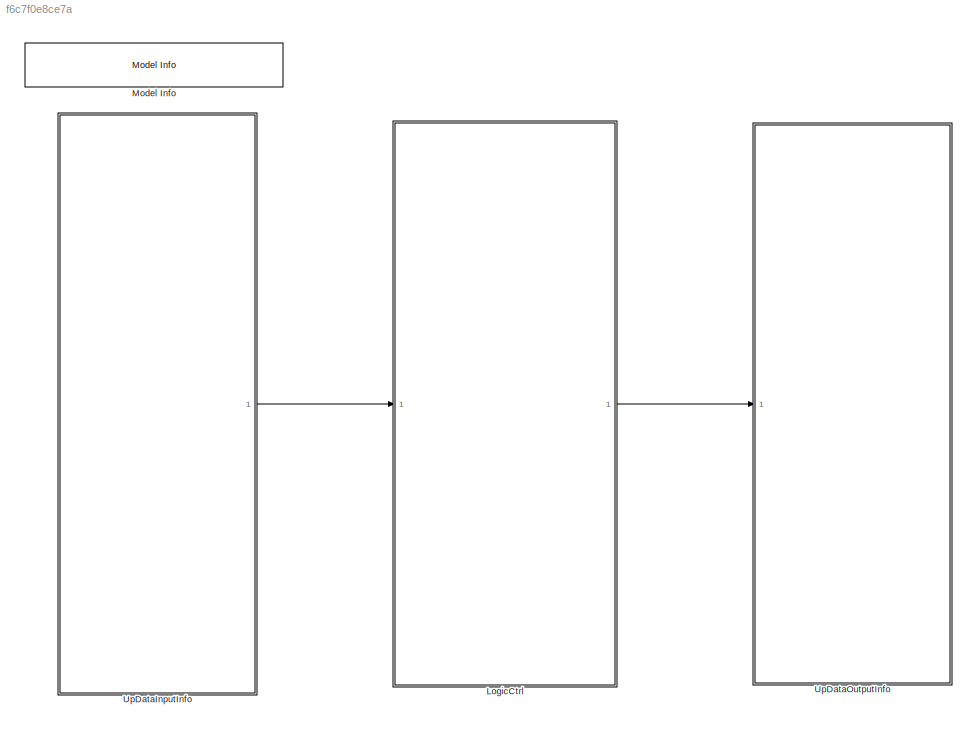
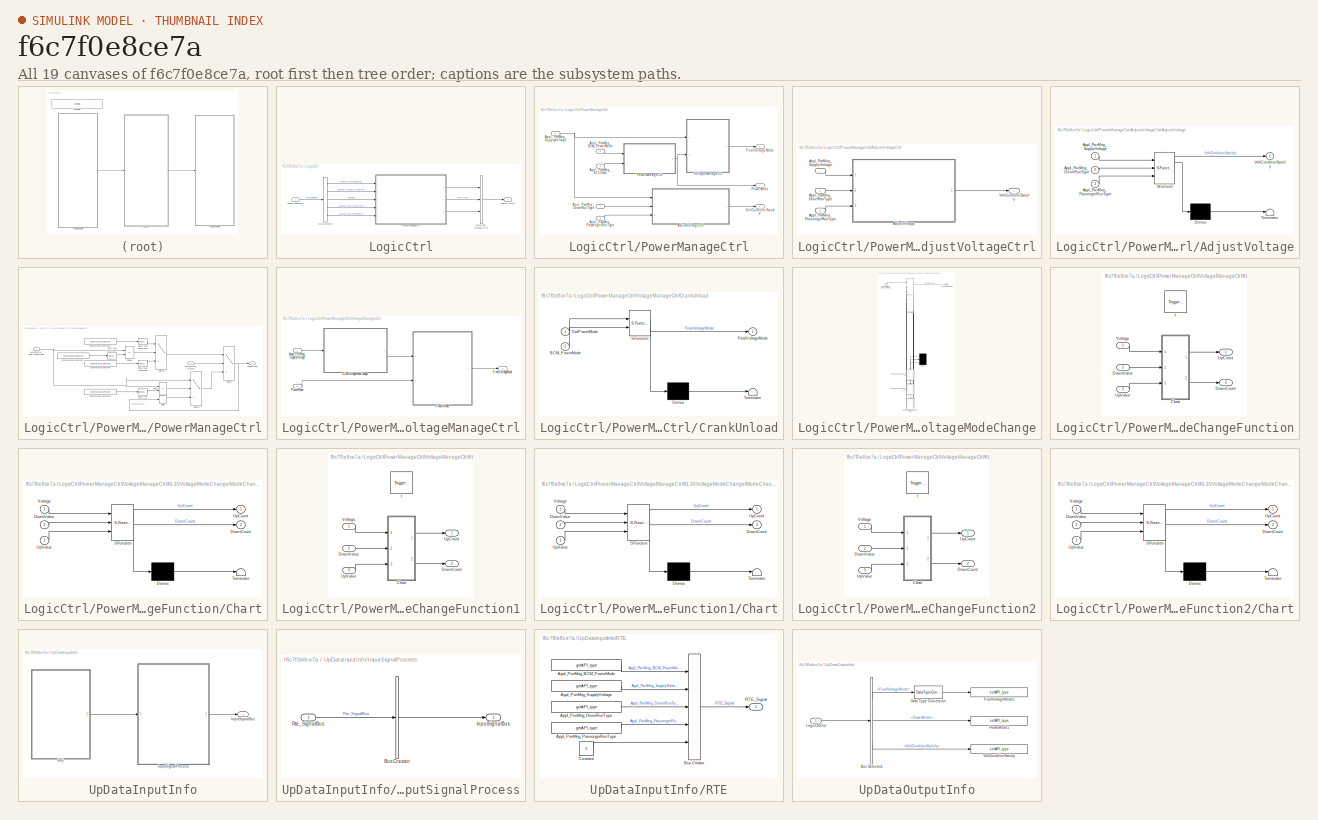
[diagram: thumbnail index - all 19 canvases of the model, root first then tree order]
MODEL slx_f6c7f0e8ce7a
KIND model
BLOCK [SubSystem] LogicCtrl
  Ports = [1, 1]
  Priority = 2
  RTWFcnNameOpts = Use subsystem name
  RTWSystemCode = Nonreusable function
  RequestExecContextInheritance = off
  TreatAsAtomicUnit = on
BLOCK [BusSelector] LogicCtrl/Bus Selector
  OutputAsBus = off
  OutputSignals = Rte_SignalBus.Appl_PwrMng_SupplyVoltage,Rte_SignalBus.Appl_PwrMng_BCM_PowerMode,Rte_SignalBus.signal5,Rte_SignalBus.Appl_PwrMng_DriverRunType,Rte_SignalBus.Appl_PwrMng_PassengerRunType
  Ports = [1, 5]
BLOCK [Inport] LogicCtrl/InputSignalBus
  IconDisplay = Port number
BLOCK [Outport] LogicCtrl/LogicCtrlOut
  IconDisplay = Port number
BLOCK [BusCreator] LogicCtrl/MainVent_OutputLvlSts
  DisplayOption = bar
  InheritFromInputs = on
  Inputs = 3
  Ports = [3, 1]
BLOCK [SubSystem] LogicCtrl/PowerManageCtrl
  AttributesFormatString = %<Description>
  Description = 电源管理逻辑处理
  Ports = [5, 3]
  RequestExecContextInheritance = off
BLOCK [SubSystem] LogicCtrl/PowerManageCtrl/AdjustVoltageCtrl
  AttributesFormatString = %<Description>
  Description = 调节电机电压控制
  Ports = [3, 1]
  RequestExecContextInheritance = off
BLOCK [SubSystem] LogicCtrl/PowerManageCtrl/AdjustVoltageCtrl/AdjustVoltage
  ErrorFcn = Stateflow.Translate.translate
  PermitHierarchicalResolution = ExplicitOnly
  Ports = [3, 1]
  RequestExecContextInheritance = off
  SFBlockType = Chart
  TreatAsAtomicUnit = on
BLOCK [Demux] LogicCtrl/PowerManageCtrl/AdjustVoltageCtrl/AdjustVoltage/ Demux 
  Outputs = 1
  Ports = [1, 1]
BLOCK [S-Function] LogicCtrl/PowerManageCtrl/AdjustVoltageCtrl/AdjustVoltage/ SFunction 
  EnableBusSupport = on
  FunctionName = sf_sfun
  Parameters = CAL_Filiter_500ms,D_POWER_ADJUST_15800MV,D_POWER_ADJUST_7800MV,D_POWER_HIGH_DN,D_POWER_Invalid,D_POWER_LOW_UP,FALSE,TRUE
  PortCounts = [3 2]
  Ports = [3, 2]
  SFcnIsStateOwnerBlock = off
  SFunctionDeploymentMode = off
  Tag = Stateflow S-Function Appl_PowerMangeModel 3
BLOCK [Terminator] LogicCtrl/PowerManageCtrl/AdjustVoltageCtrl/AdjustVoltage/ Terminator 
BLOCK [Inport] LogicCtrl/PowerManageCtrl/AdjustVoltageCtrl/AdjustVoltage/Appl_PwrMng_DriverRunType
  IconDisplay = Port number
  Port = 2
BLOCK [Inport] LogicCtrl/PowerManageCtrl/AdjustVoltageCtrl/AdjustVoltage/Appl_PwrMng_PassengerRunType
  IconDisplay = Port number
  Port = 3
BLOCK [Inport] LogicCtrl/PowerManageCtrl/AdjustVoltageCtrl/AdjustVoltage/Appl_PwrMng_SupplyVoltage
  IconDisplay = Port number
BLOCK [Outport] LogicCtrl/PowerManageCtrl/AdjustVoltageCtrl/AdjustVoltage/VoltConditionSatisfy
  IconDisplay = Port number
BLOCK [Inport] LogicCtrl/PowerManageCtrl/AdjustVoltageCtrl/Appl_PwrMng_DriverRunType
  IconDisplay = Port number
  Port = 2
BLOCK [Inport] LogicCtrl/PowerManageCtrl/AdjustVoltageCtrl/Appl_PwrMng_PassengerRunType
  IconDisplay = Port number
  Port = 3
BLOCK [Inport] LogicCtrl/PowerManageCtrl/AdjustVoltageCtrl/Appl_PwrMng_SupplyVoltage
  IconDisplay = Port number
BLOCK [Outport] LogicCtrl/PowerManageCtrl/AdjustVoltageCtrl/VoltConditionSatisfy
  IconDisplay = Port number
BLOCK [Inport] LogicCtrl/PowerManageCtrl/Appl_PwrMng_BCM_PowerMode
  IconDisplay = Port number
  Port = 2
BLOCK [Inport] LogicCtrl/PowerManageCtrl/Appl_PwrMng_DriverRunType
  IconDisplay = Port number
  Port = 4
BLOCK [Inport] LogicCtrl/PowerManageCtrl/Appl_PwrMng_KL15Sts
  IconDisplay = Port number
  Port = 3
BLOCK [Inport] LogicCtrl/PowerManageCtrl/Appl_PwrMng_PassengerRunType
  IconDisplay = Port number
  Port = 5
BLOCK [Inport] LogicCtrl/PowerManageCtrl/Appl_PwrMng_SupplyVoltage
  IconDisplay = Port number
BLOCK [Outport] LogicCtrl/PowerManageCtrl/FinalVoltageMode
  IconDisplay = Port number
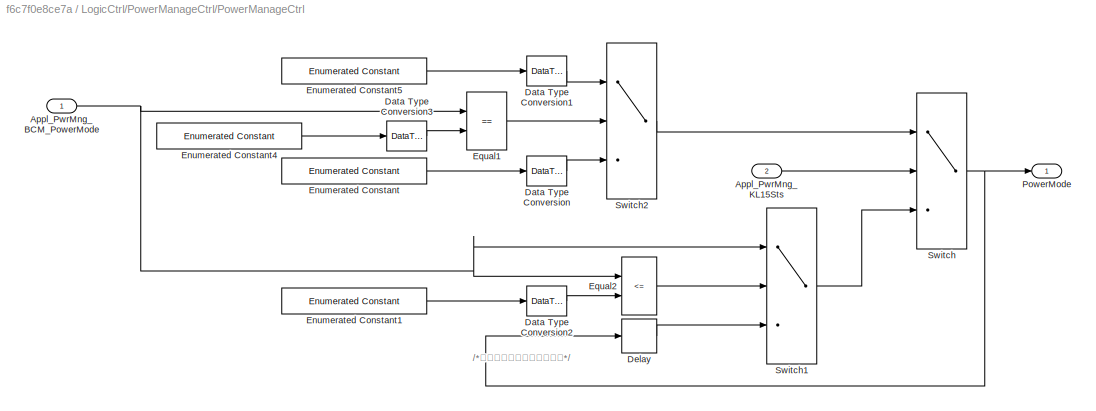
BLOCK [SubSystem] LogicCtrl/PowerManageCtrl/PowerManageCtrl
  AttributesFormatString = %<Description>
  Description = 系统电源模式管理
  Ports = [2, 1]
  RequestExecContextInheritance = off
BLOCK [Inport] LogicCtrl/PowerManageCtrl/PowerManageCtrl/Appl_PwrMng_BCM_PowerMode
  IconDisplay = Port number
BLOCK [Inport] LogicCtrl/PowerManageCtrl/PowerManageCtrl/Appl_PwrMng_KL15Sts
  IconDisplay = Port number
  Port = 2
BLOCK [DataTypeConversion] LogicCtrl/PowerManageCtrl/PowerManageCtrl/Data Type Conversion
  OutDataTypeStr = uint8
  RndMeth = Floor
  SaturateOnIntegerOverflow = off
BLOCK [DataTypeConversion] LogicCtrl/PowerManageCtrl/PowerManageCtrl/Data Type Conversion1
  OutDataTypeStr = uint8
  RndMeth = Floor
  SaturateOnIntegerOverflow = off
BLOCK [DataTypeConversion] LogicCtrl/PowerManageCtrl/PowerManageCtrl/Data Type Conversion2
  OutDataTypeStr = uint8
  RndMeth = Floor
  SaturateOnIntegerOverflow = off
BLOCK [DataTypeConversion] LogicCtrl/PowerManageCtrl/PowerManageCtrl/Data Type Conversion3
  OutDataTypeStr = uint8
  RndMeth = Floor
  SaturateOnIntegerOverflow = off
BLOCK [Delay] LogicCtrl/PowerManageCtrl/PowerManageCtrl/Delay
  DelayLength = 1
  InitialCondition = 0
  InputPortMap = u0
  InputProcessing = Inherited
  Ports = [1, 1]
BLOCK [Reference] LogicCtrl/PowerManageCtrl/PowerManageCtrl/Enumerated Constant  REF=simulink/Sources/Enumerated
Constant
  Ports = [0, 1]
  SourceBlock = simulink/Sources/Enumerated\nConstant
  SourceProductBaseCode = SL
  SourceProductName = Simulink
  SourceType = Enumerated Constant
BLOCK [Reference] LogicCtrl/PowerManageCtrl/PowerManageCtrl/Enumerated Constant1  REF=simulink/Sources/Enumerated
Constant
  Ports = [0, 1]
  SourceBlock = simulink/Sources/Enumerated\nConstant
  SourceProductBaseCode = SL
  SourceProductName = Simulink
  SourceType = Enumerated Constant
BLOCK [Reference] LogicCtrl/PowerManageCtrl/PowerManageCtrl/Enumerated Constant4  REF=simulink/Sources/Enumerated
Constant
  Ports = [0, 1]
  SourceBlock = simulink/Sources/Enumerated\nConstant
  SourceProductBaseCode = SL
  SourceProductName = Simulink
  SourceType = Enumerated Constant
BLOCK [Reference] LogicCtrl/PowerManageCtrl/PowerManageCtrl/Enumerated Constant5  REF=simulink/Sources/Enumerated
Constant
  Ports = [0, 1]
  SourceBlock = simulink/Sources/Enumerated\nConstant
  SourceProductBaseCode = SL
  SourceProductName = Simulink
  SourceType = Enumerated Constant
BLOCK [RelationalOperator] LogicCtrl/PowerManageCtrl/PowerManageCtrl/Equal1
  InputSameDT = off
  Operator = ==
  OutDataTypeStr = boolean
  Ports = [2, 1]
  RndMeth = Simplest
BLOCK [RelationalOperator] LogicCtrl/PowerManageCtrl/PowerManageCtrl/Equal2
  InputSameDT = off
  Operator = <=
  OutDataTypeStr = boolean
  Ports = [2, 1]
  RndMeth = Simplest
BLOCK [Outport] LogicCtrl/PowerManageCtrl/PowerManageCtrl/PowerMode
  IconDisplay = Port number
BLOCK [Switch] LogicCtrl/PowerManageCtrl/PowerManageCtrl/Switch
  Criteria = u2 ~= 0
  InputSameDT = off
  SaturateOnIntegerOverflow = off
BLOCK [Switch] LogicCtrl/PowerManageCtrl/PowerManageCtrl/Switch1
  Criteria = u2 ~= 0
  InputSameDT = off
  OutDataTypeStr = uint8
  SaturateOnIntegerOverflow = off
BLOCK [Switch] LogicCtrl/PowerManageCtrl/PowerManageCtrl/Switch2
  Criteria = u2 ~= 0
  InputSameDT = off
  OutDataTypeStr = uint8
  SaturateOnIntegerOverflow = off
BLOCK [Outport] LogicCtrl/PowerManageCtrl/PowerMode
  IconDisplay = Port number
  Port = 2
BLOCK [Outport] LogicCtrl/PowerManageCtrl/VoltConditionSatisfy
  IconDisplay = Port number
  Port = 3
BLOCK [SubSystem] LogicCtrl/PowerManageCtrl/VoltageManageCtrl
  AttributesFormatString = %<Description>
  Description = 电压模式切换
  Ports = [2, 1]
  RequestExecContextInheritance = off
BLOCK [Inport] LogicCtrl/PowerManageCtrl/VoltageManageCtrl/Appl_PwrMng_SupplyVoltage
  IconDisplay = Port number
BLOCK [SubSystem] LogicCtrl/PowerManageCtrl/VoltageManageCtrl/CrankUnload
  ErrorFcn = Stateflow.Translate.translate
  PermitHierarchicalResolution = ExplicitOnly
  Ports = [2, 1]
  RequestExecContextInheritance = off
  SFBlockType = Chart
  TreatAsAtomicUnit = on
BLOCK [Demux] LogicCtrl/PowerManageCtrl/VoltageManageCtrl/CrankUnload/ Demux 
  Outputs = 1
  Ports = [1, 1]
BLOCK [S-Function] LogicCtrl/PowerManageCtrl/VoltageManageCtrl/CrankUnload/ SFunction 
  EnableBusSupport = on
  FunctionName = sf_sfun
  PortCounts = [2 2]
  Ports = [2, 2]
  SFcnIsStateOwnerBlock = off
  SFunctionDeploymentMode = off
  Tag = Stateflow S-Function Appl_PowerMangeModel 4
BLOCK [Terminator] LogicCtrl/PowerManageCtrl/VoltageManageCtrl/CrankUnload/ Terminator 
BLOCK [Inport] LogicCtrl/PowerManageCtrl/VoltageManageCtrl/CrankUnload/BCM_PowerMode
  IconDisplay = Port number
  Port = 2
BLOCK [Outport] LogicCtrl/PowerManageCtrl/VoltageManageCtrl/CrankUnload/FinalVoltageMode
  IconDisplay = Port number
BLOCK [Inport] LogicCtrl/PowerManageCtrl/VoltageManageCtrl/CrankUnload/OutPowerMode
  IconDisplay = Port number
BLOCK [Outport] LogicCtrl/PowerManageCtrl/VoltageManageCtrl/FinalVoltageMode
  IconDisplay = Port number
BLOCK [SubSystem] LogicCtrl/PowerManageCtrl/VoltageManageCtrl/KL30VoltageModeChange
  ErrorFcn = Stateflow.Translate.translate
  PermitHierarchicalResolution = ExplicitOnly
  Ports = [1, 1]
  RequestExecContextInheritance = off
  SFBlockType = Chart
  TreatAsAtomicUnit = on
BLOCK [Demux] LogicCtrl/PowerManageCtrl/VoltageManageCtrl/KL30VoltageModeChange/ Demux 
  Outputs = 3
  Ports = [1, 3]
BLOCK [S-Function] LogicCtrl/PowerManageCtrl/VoltageManageCtrl/KL30VoltageModeChange/ SFunction 
  EnableBusSupport = on
  FunctionName = sf_sfun
  Parameters = CAL_DownVolt_600ms,CAL_UpVolt_200ms,D_POWER_HIGH_DN,D_POWER_HIGH_UP,D_POWER_LOW_DN,D_POWER_LOW_UP,D_POWER_NORMAL_DN,D_POWER_NORMAL_UP,D_POWER_OVER_DN,D_POWER_STOP_UP
  PortCounts = [7 11]
  Ports = [7, 11]
  SFcnIsStateOwnerBlock = off
  SFunctionDeploymentMode = off
  Tag = Stateflow S-Function Appl_PowerMangeModel 34
BLOCK [Inport] LogicCtrl/PowerManageCtrl/VoltageManageCtrl/KL30VoltageModeChange/Appl_PwrMng_SupplyVoltage
  IconDisplay = Port number
BLOCK [SubSystem] LogicCtrl/PowerManageCtrl/VoltageManageCtrl/KL30VoltageModeChange/ModeChangeFunction
  Ports = [3, 2, 0, 1]
  PreDeleteFcn = Stateflow.SLINSF.SimulinkMan.removePreDeleteFcn
  RequestExecContextInheritance = off
  UndoDeleteFcn = Stateflow.SLINSF.SimulinkMan.restorePreDeleteFcn
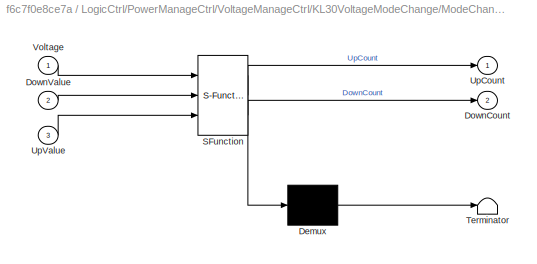
BLOCK [SubSystem] LogicCtrl/PowerManageCtrl/VoltageManageCtrl/KL30VoltageModeChange/ModeChangeFunction/Chart
  ErrorFcn = Stateflow.Translate.translate
  PermitHierarchicalResolution = ExplicitOnly
  Ports = [3, 2]
  RequestExecContextInheritance = off
  SFBlockType = Chart
  TreatAsAtomicUnit = on
BLOCK [Demux] LogicCtrl/PowerManageCtrl/VoltageManageCtrl/KL30VoltageModeChange/ModeChangeFunction/Chart/ Demux 
  Outputs = 1
  Ports = [1, 1]
BLOCK [S-Function] LogicCtrl/PowerManageCtrl/VoltageManageCtrl/KL30VoltageModeChange/ModeChangeFunction/Chart/ SFunction 
  EnableBusSupport = off
  FunctionName = sf_sfun
  PortCounts = [3 3]
  Ports = [3, 3]
  SFcnIsStateOwnerBlock = off
  SFunctionDeploymentMode = off
  Tag = Stateflow S-Function Appl_PowerMangeModel 37
BLOCK [Terminator] LogicCtrl/PowerManageCtrl/VoltageManageCtrl/KL30VoltageModeChange/ModeChangeFunction/Chart/ Terminator 
BLOCK [Outport] LogicCtrl/PowerManageCtrl/VoltageManageCtrl/KL30VoltageModeChange/ModeChangeFunction/Chart/DownCount
  IconDisplay = Port number
  Port = 2
BLOCK [Inport] LogicCtrl/PowerManageCtrl/VoltageManageCtrl/KL30VoltageModeChange/ModeChangeFunction/Chart/DownValue
  IconDisplay = Port number
  Port = 2
BLOCK [Outport] LogicCtrl/PowerManageCtrl/VoltageManageCtrl/KL30VoltageModeChange/ModeChangeFunction/Chart/UpCount
  IconDisplay = Port number
BLOCK [Inport] LogicCtrl/PowerManageCtrl/VoltageManageCtrl/KL30VoltageModeChange/ModeChangeFunction/Chart/UpValue
  IconDisplay = Port number
  Port = 3
BLOCK [Inport] LogicCtrl/PowerManageCtrl/VoltageManageCtrl/KL30VoltageModeChange/ModeChangeFunction/Chart/Voltage
  IconDisplay = Port number
BLOCK [Outport] LogicCtrl/PowerManageCtrl/VoltageManageCtrl/KL30VoltageModeChange/ModeChangeFunction/DownCount
  IconDisplay = Port number
  Port = 2
BLOCK [Inport] LogicCtrl/PowerManageCtrl/VoltageManageCtrl/KL30VoltageModeChange/ModeChangeFunction/DownValue
  IconDisplay = Port number
  OutDataTypeStr = uint16
  Port = 2
BLOCK [Outport] LogicCtrl/PowerManageCtrl/VoltageManageCtrl/KL30VoltageModeChange/ModeChangeFunction/UpCount
  IconDisplay = Port number
BLOCK [Inport] LogicCtrl/PowerManageCtrl/VoltageManageCtrl/KL30VoltageModeChange/ModeChangeFunction/UpValue
  IconDisplay = Port number
  OutDataTypeStr = uint16
  Port = 3
BLOCK [Inport] LogicCtrl/PowerManageCtrl/VoltageManageCtrl/KL30VoltageModeChange/ModeChangeFunction/Voltage
  IconDisplay = Port number
  OutDataTypeStr = uint16
BLOCK [TriggerPort] LogicCtrl/PowerManageCtrl/VoltageManageCtrl/KL30VoltageModeChange/ModeChangeFunction/f
  CopyFcn = Stateflow.SLINSF.SimulinkMan.removeBlockPreDeleteFcn
  Ports = []
  PreDeleteFcn = Stateflow.SLINSF.SimulinkMan.unsafePredeleteFcn
  StatesWhenEnabling = held
  TriggerType = function-call
  VariantControl = (inherit)
BLOCK [SubSystem] LogicCtrl/PowerManageCtrl/VoltageManageCtrl/KL30VoltageModeChange/ModeChangeFunction1
  Ports = [3, 2, 0, 1]
  PreDeleteFcn = Stateflow.SLINSF.SimulinkMan.removePreDeleteFcn
  RequestExecContextInheritance = off
  UndoDeleteFcn = Stateflow.SLINSF.SimulinkMan.restorePreDeleteFcn
BLOCK [SubSystem] LogicCtrl/PowerManageCtrl/VoltageManageCtrl/KL30VoltageModeChange/ModeChangeFunction1/Chart
  ErrorFcn = Stateflow.Translate.translate
  PermitHierarchicalResolution = ExplicitOnly
  Ports = [3, 2]
  RequestExecContextInheritance = off
  SFBlockType = Chart
  TreatAsAtomicUnit = on
BLOCK [Demux] LogicCtrl/PowerManageCtrl/VoltageManageCtrl/KL30VoltageModeChange/ModeChangeFunction1/Chart/ Demux 
  Outputs = 1
  Ports = [1, 1]
BLOCK [S-Function] LogicCtrl/PowerManageCtrl/VoltageManageCtrl/KL30VoltageModeChange/ModeChangeFunction1/Chart/ SFunction 
  EnableBusSupport = off
  FunctionName = sf_sfun
  PortCounts = [3 3]
  Ports = [3, 3]
  SFcnIsStateOwnerBlock = off
  SFunctionDeploymentMode = off
  Tag = Stateflow S-Function Appl_PowerMangeModel 1
BLOCK [Terminator] LogicCtrl/PowerManageCtrl/VoltageManageCtrl/KL30VoltageModeChange/ModeChangeFunction1/Chart/ Terminator 
BLOCK [Outport] LogicCtrl/PowerManageCtrl/VoltageManageCtrl/KL30VoltageModeChange/ModeChangeFunction1/Chart/DownCount
  IconDisplay = Port number
  Port = 2
BLOCK [Inport] LogicCtrl/PowerManageCtrl/VoltageManageCtrl/KL30VoltageModeChange/ModeChangeFunction1/Chart/DownValue
  IconDisplay = Port number
  Port = 2
BLOCK [Outport] LogicCtrl/PowerManageCtrl/VoltageManageCtrl/KL30VoltageModeChange/ModeChangeFunction1/Chart/UpCount
  IconDisplay = Port number
BLOCK [Inport] LogicCtrl/PowerManageCtrl/VoltageManageCtrl/KL30VoltageModeChange/ModeChangeFunction1/Chart/UpValue
  IconDisplay = Port number
  Port = 3
BLOCK [Inport] LogicCtrl/PowerManageCtrl/VoltageManageCtrl/KL30VoltageModeChange/ModeChangeFunction1/Chart/Voltage
  IconDisplay = Port number
BLOCK [Outport] LogicCtrl/PowerManageCtrl/VoltageManageCtrl/KL30VoltageModeChange/ModeChangeFunction1/DownCount
  IconDisplay = Port number
  Port = 2
BLOCK [Inport] LogicCtrl/PowerManageCtrl/VoltageManageCtrl/KL30VoltageModeChange/ModeChangeFunction1/DownValue
  IconDisplay = Port number
  OutDataTypeStr = uint16
  Port = 2
BLOCK [Outport] LogicCtrl/PowerManageCtrl/VoltageManageCtrl/KL30VoltageModeChange/ModeChangeFunction1/UpCount
  IconDisplay = Port number
BLOCK [Inport] LogicCtrl/PowerManageCtrl/VoltageManageCtrl/KL30VoltageModeChange/ModeChangeFunction1/UpValue
  IconDisplay = Port number
  OutDataTypeStr = uint16
  Port = 3
BLOCK [Inport] LogicCtrl/PowerManageCtrl/VoltageManageCtrl/KL30VoltageModeChange/ModeChangeFunction1/Voltage
  IconDisplay = Port number
  OutDataTypeStr = uint16
BLOCK [TriggerPort] LogicCtrl/PowerManageCtrl/VoltageManageCtrl/KL30VoltageModeChange/ModeChangeFunction1/f
  CopyFcn = Stateflow.SLINSF.SimulinkMan.removeBlockPreDeleteFcn
  Ports = []
  PreDeleteFcn = Stateflow.SLINSF.SimulinkMan.unsafePredeleteFcn
  StatesWhenEnabling = held
  TriggerType = function-call
  VariantControl = (inherit)
BLOCK [SubSystem] LogicCtrl/PowerManageCtrl/VoltageManageCtrl/KL30VoltageModeChange/ModeChangeFunction2
  Ports = [3, 2, 0, 1]
  PreDeleteFcn = Stateflow.SLINSF.SimulinkMan.removePreDeleteFcn
  RequestExecContextInheritance = off
  UndoDeleteFcn = Stateflow.SLINSF.SimulinkMan.restorePreDeleteFcn
BLOCK [SubSystem] LogicCtrl/PowerManageCtrl/VoltageManageCtrl/KL30VoltageModeChange/ModeChangeFunction2/Chart
  ErrorFcn = Stateflow.Translate.translate
  PermitHierarchicalResolution = ExplicitOnly
  Ports = [3, 2]
  RequestExecContextInheritance = off
  SFBlockType = Chart
  TreatAsAtomicUnit = on
BLOCK [Demux] LogicCtrl/PowerManageCtrl/VoltageManageCtrl/KL30VoltageModeChange/ModeChangeFunction2/Chart/ Demux 
  Outputs = 1
  Ports = [1, 1]
BLOCK [S-Function] LogicCtrl/PowerManageCtrl/VoltageManageCtrl/KL30VoltageModeChange/ModeChangeFunction2/Chart/ SFunction 
  EnableBusSupport = off
  FunctionName = sf_sfun
  PortCounts = [3 3]
  Ports = [3, 3]
  SFcnIsStateOwnerBlock = off
  SFunctionDeploymentMode = off
  Tag = Stateflow S-Function Appl_PowerMangeModel 2
BLOCK [Terminator] LogicCtrl/PowerManageCtrl/VoltageManageCtrl/KL30VoltageModeChange/ModeChangeFunction2/Chart/ Terminator 
BLOCK [Outport] LogicCtrl/PowerManageCtrl/VoltageManageCtrl/KL30VoltageModeChange/ModeChangeFunction2/Chart/DownCount
  IconDisplay = Port number
  Port = 2
BLOCK [Inport] LogicCtrl/PowerManageCtrl/VoltageManageCtrl/KL30VoltageModeChange/ModeChangeFunction2/Chart/DownValue
  IconDisplay = Port number
  Port = 2
BLOCK [Outport] LogicCtrl/PowerManageCtrl/VoltageManageCtrl/KL30VoltageModeChange/ModeChangeFunction2/Chart/UpCount
  IconDisplay = Port number
BLOCK [Inport] LogicCtrl/PowerManageCtrl/VoltageManageCtrl/KL30VoltageModeChange/ModeChangeFunction2/Chart/UpValue
  IconDisplay = Port number
  Port = 3
BLOCK [Inport] LogicCtrl/PowerManageCtrl/VoltageManageCtrl/KL30VoltageModeChange/ModeChangeFunction2/Chart/Voltage
  IconDisplay = Port number
BLOCK [Outport] LogicCtrl/PowerManageCtrl/VoltageManageCtrl/KL30VoltageModeChange/ModeChangeFunction2/DownCount
  IconDisplay = Port number
  Port = 2
BLOCK [Inport] LogicCtrl/PowerManageCtrl/VoltageManageCtrl/KL30VoltageModeChange/ModeChangeFunction2/DownValue
  IconDisplay = Port number
  OutDataTypeStr = uint16
  Port = 2
BLOCK [Outport] LogicCtrl/PowerManageCtrl/VoltageManageCtrl/KL30VoltageModeChange/ModeChangeFunction2/UpCount
  IconDisplay = Port number
BLOCK [Inport] LogicCtrl/PowerManageCtrl/VoltageManageCtrl/KL30VoltageModeChange/ModeChangeFunction2/UpValue
  IconDisplay = Port number
  OutDataTypeStr = uint16
  Port = 3
BLOCK [Inport] LogicCtrl/PowerManageCtrl/VoltageManageCtrl/KL30VoltageModeChange/ModeChangeFunction2/Voltage
  IconDisplay = Port number
  OutDataTypeStr = uint16
BLOCK [TriggerPort] LogicCtrl/PowerManageCtrl/VoltageManageCtrl/KL30VoltageModeChange/ModeChangeFunction2/f
  CopyFcn = Stateflow.SLINSF.SimulinkMan.removeBlockPreDeleteFcn
  Ports = []
  PreDeleteFcn = Stateflow.SLINSF.SimulinkMan.unsafePredeleteFcn
  StatesWhenEnabling = held
  TriggerType = function-call
  VariantControl = (inherit)
BLOCK [Outport] LogicCtrl/PowerManageCtrl/VoltageManageCtrl/KL30VoltageModeChange/OutVoltageMode
  IconDisplay = Port number
BLOCK [Inport] LogicCtrl/PowerManageCtrl/VoltageManageCtrl/PowerMode
  IconDisplay = Port number
  Port = 2
BLOCK [Reference] Model Info  REF=simulink/Model-Wide
Utilities/Model Info
  Ports = []
  SourceBlock = simulink/Model-Wide\nUtilities/Model Info
  SourceProductBaseCode = SL
  SourceProductName = Simulink
  SourceType = CMBlock
BLOCK [SubSystem] UpDataInputInfo
  Ports = [0, 1]
  Priority = 1
  RTWFcnNameOpts = Use subsystem name
  RTWSystemCode = Nonreusable function
  RequestExecContextInheritance = off
  ShowPortLabels = none
  TreatAsAtomicUnit = on
BLOCK [Outport] UpDataInputInfo/InputSignalBus
  IconDisplay = Port number
BLOCK [SubSystem] UpDataInputInfo/InputSignalProcess
  AttributesFormatString = %<Description>
  Description = 数据处理
  Ports = [1, 1]
  RTWFcnNameOpts = Use subsystem name
  RTWSystemCode = Nonreusable function
  RequestExecContextInheritance = off
BLOCK [BusCreator] UpDataInputInfo/InputSignalProcess/Bus Creator
  DisplayOption = bar
  InheritFromInputs = on
  Inputs = 1
  Ports = [1, 1]
BLOCK [Outport] UpDataInputInfo/InputSignalProcess/InputSignalBus
  IconDisplay = Port number
BLOCK [Inport] UpDataInputInfo/InputSignalProcess/Rte_SignalBus
  IconDisplay = Port number
BLOCK [SubSystem] UpDataInputInfo/RTE
  AttributesFormatString = %<Description>
  Description = 接口自动生成
  Ports = [0, 1]
  RTWFcnNameOpts = Use subsystem name
  RTWSystemCode = Nonreusable function
  RequestExecContextInheritance = off
  TreatAsAtomicUnit = on
BLOCK [Reference] UpDataInputInfo/RTE/Appl_PwrMng_BCM_PowerMode  REF=DareLib/Dare/getAPI_type
  AttributesFormatString = %<g_funcname>
  Ports = [0, 1]
  SourceBlock = DareLib/Dare/getAPI_type
  SourceProductName = Dare Library
  SourceType = Dare Custom
BLOCK [Reference] UpDataInputInfo/RTE/Appl_PwrMng_DriverRunType  REF=DareLib/Dare/getAPI_type
  AttributesFormatString = %<g_funcname>
  Ports = [0, 1]
  SourceBlock = DareLib/Dare/getAPI_type
  SourceProductName = Dare Library
  SourceType = Dare Custom
BLOCK [Reference] UpDataInputInfo/RTE/Appl_PwrMng_PassengerRunType  REF=DareLib/Dare/getAPI_type
  AttributesFormatString = %<g_funcname>
  Ports = [0, 1]
  SourceBlock = DareLib/Dare/getAPI_type
  SourceProductName = Dare Library
  SourceType = Dare Custom
BLOCK [Reference] UpDataInputInfo/RTE/Appl_PwrMng_SupplyVoltage  REF=DareLib/Dare/getAPI_type
  AttributesFormatString = %<g_funcname>
  Ports = [0, 1]
  SourceBlock = DareLib/Dare/getAPI_type
  SourceProductName = Dare Library
  SourceType = Dare Custom
BLOCK [BusCreator] UpDataInputInfo/RTE/Bus Creator
  DisplayOption = bar
  InheritFromInputs = on
  Inputs = 5
  Ports = [5, 1]
BLOCK [Constant] UpDataInputInfo/RTE/Constant
  OutDataTypeStr = uint8
  Value = 0
BLOCK [Outport] UpDataInputInfo/RTE/RTE_Signal
  IconDisplay = Port number
BLOCK [SubSystem] UpDataOutputInfo
  Ports = [1]
  Priority = 3
  RTWFcnNameOpts = Use subsystem name
  RTWSystemCode = Nonreusable function
  RequestExecContextInheritance = off
  TreatAsAtomicUnit = on
BLOCK [BusSelector] UpDataOutputInfo/Bus Selector1
  OutputAsBus = off
  OutputSignals = FinalVoltageMode,PowerMode,VoltConditionSatisfy
  Ports = [1, 3]
BLOCK [DataTypeConversion] UpDataOutputInfo/Data Type Conversion
  OutDataTypeStr = uint8
  RndMeth = Floor
  SaturateOnIntegerOverflow = off
BLOCK [Reference] UpDataOutputInfo/FinalVoltageMode1  REF=DareLib/Dare/setAPI_type
  AttributesFormatString = %<g_funcname>
  Ports = [1]
  SourceBlock = DareLib/Dare/setAPI_type
  SourceProductName = Dare Library
  SourceType = Dare Custom
BLOCK [Inport] UpDataOutputInfo/LogicCtrlOut
  IconDisplay = Port number
BLOCK [Reference] UpDataOutputInfo/PowerMode1  REF=DareLib/Dare/setAPI_type
  AttributesFormatString = %<g_funcname>
  Ports = [1]
  SourceBlock = DareLib/Dare/setAPI_type
  SourceProductName = Dare Library
  SourceType = Dare Custom
BLOCK [Reference] UpDataOutputInfo/VoltConditionSatisfy  REF=DareLib/Dare/setAPI_type
  AttributesFormatString = %<g_funcname>
  Ports = [1]
  SourceBlock = DareLib/Dare/setAPI_type
  SourceProductName = Dare Library
  SourceType = Dare Custom
ANNOTATION LogicCtrl/PowerManageCtrl/PowerManageCtrl: /*预留报文保持上一状态档位*/
LINE LogicCtrl/Bus Selector:1 -> LogicCtrl/PowerManageCtrl:1
LINE LogicCtrl/Bus Selector:2 -> LogicCtrl/PowerManageCtrl:2
LINE LogicCtrl/Bus Selector:3 -> LogicCtrl/PowerManageCtrl:3
LINE LogicCtrl/Bus Selector:4 -> LogicCtrl/PowerManageCtrl:4
LINE LogicCtrl/Bus Selector:5 -> LogicCtrl/PowerManageCtrl:5
LINE LogicCtrl/InputSignalBus:1 -> LogicCtrl/Bus Selector:1
LINE LogicCtrl/MainVent_OutputLvlSts:1 -> LogicCtrl/LogicCtrlOut:1
LINE LogicCtrl/PowerManageCtrl/AdjustVoltageCtrl/AdjustVoltage:1 -> LogicCtrl/PowerManageCtrl/AdjustVoltageCtrl/VoltConditionSatisfy:1
LINE LogicCtrl/PowerManageCtrl/AdjustVoltageCtrl/Appl_PwrMng_DriverRunType:1 -> LogicCtrl/PowerManageCtrl/AdjustVoltageCtrl/AdjustVoltage:2
LINE LogicCtrl/PowerManageCtrl/AdjustVoltageCtrl/Appl_PwrMng_PassengerRunType:1 -> LogicCtrl/PowerManageCtrl/AdjustVoltageCtrl/AdjustVoltage:3
LINE LogicCtrl/PowerManageCtrl/AdjustVoltageCtrl/Appl_PwrMng_SupplyVoltage:1 -> LogicCtrl/PowerManageCtrl/AdjustVoltageCtrl/AdjustVoltage:1
LINE LogicCtrl/PowerManageCtrl/AdjustVoltageCtrl:1 -> LogicCtrl/PowerManageCtrl/VoltConditionSatisfy:1
LINE LogicCtrl/PowerManageCtrl/Appl_PwrMng_BCM_PowerMode:1 -> LogicCtrl/PowerManageCtrl/PowerManageCtrl:1
LINE LogicCtrl/PowerManageCtrl/Appl_PwrMng_DriverRunType:1 -> LogicCtrl/PowerManageCtrl/AdjustVoltageCtrl:2
LINE LogicCtrl/PowerManageCtrl/Appl_PwrMng_KL15Sts:1 -> LogicCtrl/PowerManageCtrl/PowerManageCtrl:2
LINE LogicCtrl/PowerManageCtrl/Appl_PwrMng_PassengerRunType:1 -> LogicCtrl/PowerManageCtrl/AdjustVoltageCtrl:3
NET LogicCtrl/PowerManageCtrl/Appl_PwrMng_SupplyVoltage:1 -> LogicCtrl/PowerManageCtrl/AdjustVoltageCtrl:1, LogicCtrl/PowerManageCtrl/VoltageManageCtrl:1
NET LogicCtrl/PowerManageCtrl/PowerManageCtrl/Appl_PwrMng_BCM_PowerMode:1 -> LogicCtrl/PowerManageCtrl/PowerManageCtrl/Equal1:1, LogicCtrl/PowerManageCtrl/PowerManageCtrl/Equal2:1, LogicCtrl/PowerManageCtrl/PowerManageCtrl/Switch1:1
LINE LogicCtrl/PowerManageCtrl/PowerManageCtrl/Appl_PwrMng_KL15Sts:1 -> LogicCtrl/PowerManageCtrl/PowerManageCtrl/Switch:2
LINE LogicCtrl/PowerManageCtrl/PowerManageCtrl/Data Type Conversion1:1 -> LogicCtrl/PowerManageCtrl/PowerManageCtrl/Switch2:1
LINE LogicCtrl/PowerManageCtrl/PowerManageCtrl/Data Type Conversion2:1 -> LogicCtrl/PowerManageCtrl/PowerManageCtrl/Equal2:2
LINE LogicCtrl/PowerManageCtrl/PowerManageCtrl/Data Type Conversion3:1 -> LogicCtrl/PowerManageCtrl/PowerManageCtrl/Equal1:2
LINE LogicCtrl/PowerManageCtrl/PowerManageCtrl/Data Type Conversion:1 -> LogicCtrl/PowerManageCtrl/PowerManageCtrl/Switch2:3
LINE LogicCtrl/PowerManageCtrl/PowerManageCtrl/Delay:1 -> LogicCtrl/PowerManageCtrl/PowerManageCtrl/Switch1:3
LINE LogicCtrl/PowerManageCtrl/PowerManageCtrl/Enumerated Constant1:1 -> LogicCtrl/PowerManageCtrl/PowerManageCtrl/Data Type Conversion2:1
LINE LogicCtrl/PowerManageCtrl/PowerManageCtrl/Enumerated Constant4:1 -> LogicCtrl/PowerManageCtrl/PowerManageCtrl/Data Type Conversion3:1
LINE LogicCtrl/PowerManageCtrl/PowerManageCtrl/Enumerated Constant5:1 -> LogicCtrl/PowerManageCtrl/PowerManageCtrl/Data Type Conversion1:1
LINE LogicCtrl/PowerManageCtrl/PowerManageCtrl/Enumerated Constant:1 -> LogicCtrl/PowerManageCtrl/PowerManageCtrl/Data Type Conversion:1
LINE LogicCtrl/PowerManageCtrl/PowerManageCtrl/Equal1:1 -> LogicCtrl/PowerManageCtrl/PowerManageCtrl/Switch2:2
LINE LogicCtrl/PowerManageCtrl/PowerManageCtrl/Equal2:1 -> LogicCtrl/PowerManageCtrl/PowerManageCtrl/Switch1:2
LINE LogicCtrl/PowerManageCtrl/PowerManageCtrl/Switch1:1 -> LogicCtrl/PowerManageCtrl/PowerManageCtrl/Switch:3
LINE LogicCtrl/PowerManageCtrl/PowerManageCtrl/Switch2:1 -> LogicCtrl/PowerManageCtrl/PowerManageCtrl/Switch:1
NET LogicCtrl/PowerManageCtrl/PowerManageCtrl/Switch:1 -> LogicCtrl/PowerManageCtrl/PowerManageCtrl/Delay:1, LogicCtrl/PowerManageCtrl/PowerManageCtrl/PowerMode:1
NET LogicCtrl/PowerManageCtrl/PowerManageCtrl:1 -> LogicCtrl/PowerManageCtrl/PowerMode:1, LogicCtrl/PowerManageCtrl/VoltageManageCtrl:2
LINE LogicCtrl/PowerManageCtrl/VoltageManageCtrl/Appl_PwrMng_SupplyVoltage:1 -> LogicCtrl/PowerManageCtrl/VoltageManageCtrl/KL30VoltageModeChange:1
LINE LogicCtrl/PowerManageCtrl/VoltageManageCtrl/CrankUnload:1 -> LogicCtrl/PowerManageCtrl/VoltageManageCtrl/FinalVoltageMode:1
LINE LogicCtrl/PowerManageCtrl/VoltageManageCtrl/KL30VoltageModeChange:1 -> LogicCtrl/PowerManageCtrl/VoltageManageCtrl/CrankUnload:1
LINE LogicCtrl/PowerManageCtrl/VoltageManageCtrl/PowerMode:1 -> LogicCtrl/PowerManageCtrl/VoltageManageCtrl/CrankUnload:2
LINE LogicCtrl/PowerManageCtrl/VoltageManageCtrl:1 -> LogicCtrl/PowerManageCtrl/FinalVoltageMode:1
LINE LogicCtrl/PowerManageCtrl:1 -> LogicCtrl/MainVent_OutputLvlSts:1
LINE LogicCtrl/PowerManageCtrl:2 -> LogicCtrl/MainVent_OutputLvlSts:2
LINE LogicCtrl/PowerManageCtrl:3 -> LogicCtrl/MainVent_OutputLvlSts:3
LINE LogicCtrl:1 -> UpDataOutputInfo:1
LINE UpDataInputInfo/InputSignalProcess/Bus Creator:1 -> UpDataInputInfo/InputSignalProcess/InputSignalBus:1
LINE UpDataInputInfo/InputSignalProcess/Rte_SignalBus:1 -> UpDataInputInfo/InputSignalProcess/Bus Creator:1
LINE UpDataInputInfo/InputSignalProcess:1 -> UpDataInputInfo/InputSignalBus:1
LINE UpDataInputInfo/RTE/Appl_PwrMng_BCM_PowerMode:1 -> UpDataInputInfo/RTE/Bus Creator:1
LINE UpDataInputInfo/RTE/Appl_PwrMng_DriverRunType:1 -> UpDataInputInfo/RTE/Bus Creator:3
LINE UpDataInputInfo/RTE/Appl_PwrMng_PassengerRunType:1 -> UpDataInputInfo/RTE/Bus Creator:4
LINE UpDataInputInfo/RTE/Appl_PwrMng_SupplyVoltage:1 -> UpDataInputInfo/RTE/Bus Creator:2
LINE UpDataInputInfo/RTE/Bus Creator:1 -> UpDataInputInfo/RTE/RTE_Signal:1
LINE UpDataInputInfo/RTE/Constant:1 -> UpDataInputInfo/RTE/Bus Creator:5
LINE UpDataInputInfo/RTE:1 -> UpDataInputInfo/InputSignalProcess:1
LINE UpDataInputInfo:1 -> LogicCtrl:1
LINE UpDataOutputInfo/Bus Selector1:1 -> UpDataOutputInfo/Data Type Conversion:1
LINE UpDataOutputInfo/Bus Selector1:2 -> UpDataOutputInfo/PowerMode1:1
LINE UpDataOutputInfo/Bus Selector1:3 -> UpDataOutputInfo/VoltConditionSatisfy:1
LINE UpDataOutputInfo/Data Type Conversion:1 -> UpDataOutputInfo/FinalVoltageMode1:1
LINE UpDataOutputInfo/LogicCtrlOut:1 -> UpDataOutputInfo/Bus Selector1:1
note: NET lines group one-source signal fan-out (src -> all destinations, sorted); 1:1 wires keep LINE
CHART LogicCtrl/PowerManageCtrl/VoltageManageCtrl/KL30VoltageModeChange/ModeChangeFunction1/Chart states=3 transitions=5
  STATE_LABEL 'VoltDownWait\nen:\nUpCount = 0;\ndu:\nDownCount ++;\n'
  STATE_LABEL 'Init\nen:\nUpCount = 1;\nDownCount = 1;\n'
  STATE_LABEL 'VoltUpWait\nen:\nDownCount = 0;\ndu:\nUpCount ++;\n'
CHART LogicCtrl/PowerManageCtrl/VoltageManageCtrl/KL30VoltageModeChange/ModeChangeFunction2/Chart states=3 transitions=5
  STATE_LABEL 'VoltDownWait\nen:\nUpCount = 0;\ndu:\nDownCount ++;\n'
  STATE_LABEL 'Init\nen:\nUpCount = 1;\nDownCount = 1;\n'
  STATE_LABEL 'VoltUpWait\nen:\nDownCount = 0;\ndu:\nUpCount ++;\n'
CHART LogicCtrl/PowerManageCtrl/AdjustVoltageCtrl/AdjustVoltage states=7 transitions=65
  STATE_LABEL 'VoltageSatisfyProcess'
  STATE_LABEL '/*电压＞16V*/\n[D_POWER_HIGH_DN < Appl_PwrMng_SupplyVoltage]'
  STATE_LABEL '{StaticVoltageOKFlag = D_POWER_Invalid;}'
  STATE_LABEL '/*电压 <= 15.8V（高压回差0.2V）*/\n[D_POWER_ADJUST_15800MV >= Appl_PwrMng_SupplyVoltage]'
  STATE_LABEL '{StaticVoltageOKFlag = FALSE;}'
  STATE_LABEL '/*电压由高压回到正常范围，或者处在正常范围(9V~16V)*/\n[D_POWER_LOW_UP <= Appl_PwrMng_SupplyVoltage && D_POWER_HIGH_DN >= Appl_PwrMng_SupplyVoltage ...\n&& FALSE == StaticVoltageOKFlag]'
  STATE_LABEL '{StaticVoltageOKFlag = TRUE;}'
  STATE_LABEL '/*电压< 7.8V || 电压 >16V（低回差1.2V，避免低压继电器无法吸合问题）NXP及芯旺微*/\n[D_POWER_ADJUST_7800MV > Appl_PwrMng_SupplyVoltage || D_POWER_HIGH_DN < Appl_PwrMng_SupplyVoltage]'
  STATE_LABEL '{RunVoltageOKFlag = TRUE;}'
  STATE_LABEL '{RunVoltageOKFlag = FALSE;}'
  STATE_LABEL 'AcquireVoltage'
  STATE_LABEL 'Default\nen:\nNomalCnt = 0;'
  STATE_LABEL '/*未初始化过*/\n[FALSE == InitFlag]'
  STATE_LABEL '{InitFlag = TRUE;\nVoltConditionSatisfy = TRUE;}'
  STATE_LABEL '[AbnomalCnt < CAL_Filiter_500ms]'
  STATE_LABEL '{AbnomalCnt = CAL_Filiter_500ms;}'
  STATE_LABEL '{AbnomalCnt ++;}'
  STATE_LABEL 'VoltageChecking'
  STATE_LABEL 'NormalCounting\nen:\nAbnomalCnt = 0;'
  STATE_LABEL '[NomalCnt < CAL_Filiter_500ms]'
  STATE_LABEL '{NomalCnt = CAL_Filiter_500ms;}'
  STATE_LABEL '{NomalCnt ++;}'
  STATE_LABEL 'AbnormalCounting\nen:\nNomalCnt = 0;'
  STATE_LABEL '[AbnomalCnt < CAL_Filiter_500ms]'
  STATE_LABEL '{AbnomalCnt = CAL_Filiter_500ms;}'
  STATE_LABEL '{AbnomalCnt ++;}'
  STATE_LABEL '/*电机静止电压条件满足9V~16V*/\n[TRUE == StaticVoltageOKFlag]'
  STATE_LABEL '/*电机调节中，需要注意电压回差，避免无法堵转*/\n[(enSeatMotorRunTye.EN_NULL != Appl_PwrMng_DriverRunType ...\n|| enSeatMotorRunTye.EN_NULL != Appl_PwrMng_PassengerRunType) ...\n&& TRUE != RunVoltageOKFlag]'
  STATE_LABEL '/*电机调节中，需要注意电压回差，避免无法堵转*/\n[(enSeatMotorRunTye.EN_NULL != Appl_PwrMng_DriverRunType ...\n|| enSeatMotorRunTye.EN_NULL != Appl_PwrMng_PassengerRunType) ...\n&& TRUE != RunVoltageOKFlag]'
  STATE_LABEL '/*无主副驾调节请求 && (运动电压不满足8.9V~16V || 电机静止电压不满足9V~16V)*/\n[(enSeatMotorRunTye.EN_NULL == Appl_PwrMng_DriverRunType ...\n&& enSeatMotorRunTye.EN_NULL == Appl_PwrMng_PassengerRunType) ...\n&& (TRUE != StaticVoltageOKFlag || TRUE != RunVoltageOKFlag)]'
  STATE_LABEL '/*电机静止电压条件满足9V~16V*/\n[TRUE == StaticVoltageOKFlag]'
  STATE_LABEL 'Default\nen:\nNomalCnt = 0;'
  STATE_LABEL '/*未初始化过*/\n[FALSE == InitFlag]'
  STATE_LABEL '{InitFlag = TRUE;\nVoltConditionSatisfy = TRUE;}'
  STATE_LABEL '[AbnomalCnt < CAL_Filiter_500ms]'
  STATE_LABEL '{AbnomalCnt = CAL_Filiter_500ms;}'
  STATE_LABEL '{AbnomalCnt ++;}'
  STATE_LABEL 'VoltageChecking'
  STATE_LABEL 'NormalCounting\nen:\nAbnomalCnt = 0;'
  STATE_LABEL '[NomalCnt < CAL_Filiter_500ms]'
CHART LogicCtrl/PowerManageCtrl/VoltageManageCtrl/CrankUnload states=2 transitions=3
  STATE_LABEL 'Init\ndu:\nFinalVoltageMode = OutPowerMode;\nTempPowerMode = OutPowerMode;'
  STATE_LABEL 'CRANK\ndu:\nFinalVoltageMode = TempPowerMode;'
CHART LogicCtrl/PowerManageCtrl/VoltageManageCtrl/KL30VoltageModeChange states=10 transitions=31
  STATE_LABEL '[UpCount,DownCount] = ModeChangeFunction(Voltage,DownValue,UpValue)'
  STATE_LABEL '[UpCount,DownCount] = ModeChangeFunction1(Voltage,DownValue,UpValue)'
  STATE_LABEL '[UpCount,DownCount] = ModeChangeFunction2(Voltage,DownValue,UpValue)'
  STATE_LABEL 'BelowNormal'
  STATE_LABEL 'Stop\nen:\nOutVoltageMode = enFinalPowerMode.EN_STOP_VOLT;/*0=停止模式*/\nex:\nUpTimer = 0;\n'
  STATE_LABEL '/*系统电压>停止模式上限电压*/\n[Appl_PwrMng_SupplyVoltage > D_POWER_STOP_UP]'
  STATE_LABEL '/*系统电压<=停止模式上限电压*/\n{UpTimer = 0;\nOutVoltageMode = enFinalPowerMode.EN_STOP_VOLT;}'
  STATE_LABEL '{UpTimer ++;}'
  STATE_LABEL 'Low\nen:\nOutVoltageMode = enFinalPowerMode.EN_LOW_VOLT;/*1=低压模式*/\ndu:\n[UpTimer,DownTimer] = ModeChangeFunction(Appl_PwrMng_SupplyVoltage, D_POWER_LOW_DN, D_POWER_LOW_UP);\nex:\nUpTimer = 0;\nDownTimer = 0;\n'
  STATE_LABEL '/*系统电压<=低压模式下限*/\n[Appl_PwrMng_SupplyVoltage ...\n<= D_POWER_LOW_DN]'
  STATE_LABEL '/*系统电压<电压模式下限持续600ms*/\n[DownTimer >= CAL_DownVolt_600ms]'
  STATE_LABEL '/*系统电压>停止模式上限电压*/\n[UpTimer >= CAL_DownVolt_600ms ...\n&& Appl_PwrMng_SupplyVoltage <= D_POWER_LOW_UP]'
  STATE_LABEL 'Stop\nen:\nOutVoltageMode = enFinalPowerMode.EN_STOP_VOLT;/*0=停止模式*/\nex:\nUpTimer = 0;\n'
  STATE_LABEL '/*系统电压>停止模式上限电压*/\n[Appl_PwrMng_SupplyVoltage > D_POWER_STOP_UP]'
  STATE_LABEL '/*系统电压<=停止模式上限电压*/\n{UpTimer = 0;\nOutVoltageMode = enFinalPowerMode.EN_STOP_VOLT;}'
  STATE_LABEL '{UpTimer ++;}'
  STATE_LABEL 'Low\nen:\nOutVoltageMode = enFinalPowerMode.EN_LOW_VOLT;/*1=低压模式*/\ndu:\n[UpTimer,DownTimer] = ModeChangeFunction(Appl_PwrMng_SupplyVoltage, D_POWER_LOW_DN, D_POWER_LOW_UP);\nex:\nUpTimer = 0;\nDownTimer = 0;\n'
  STATE_LABEL 'AboveNormal'
  STATE_LABEL 'High\nen:\nOutVoltageMode = enFinalPowerMode.EN_HIGH_VOLT;/*3=高压模式*/\ndu:\n[UpTimer,DownTimer] = ModeChangeFunction2(Appl_PwrMng_SupplyVoltage, D_POWER_HIGH_DN, D_POWER_HIGH_UP);\nex:\nUpTimer = 0;\nDownTimer = 0;\n'
  STATE_LABEL 'Over\nen:\nOutVoltageMode = enFinalPowerMode.EN_OVER_VOLT;/*4=过压模式*/\nex:\nDownTimer = 0;\n'
  STATE_LABEL '/*系统电压<过压模式下限*/\n[Appl_PwrMng_SupplyVoltage < D_POWER_OVER_DN]'
  STATE_LABEL '/*系统电压>过压模式上限*/\n{DownTimer = 0;\nOutVoltageMode = enFinalPowerMode.EN_OVER_VOLT;}'
  STATE_LABEL '{DownTimer  ++;}'
  STATE_LABEL '/*系统电压>电压模式上限持续200ms*/\n[UpTimer >= CAL_UpVolt_200ms]'
  STATE_LABEL '/*系统电压<电压模式上限持续200ms\n且 系统电压>=正常电压上限*/\n[DownTimer >= CAL_UpVolt_200ms ...\n&& Appl_PwrMng_SupplyVoltage >= D_POWER_NORMAL_UP]'
  STATE_LABEL '/*系统电压>高压模式上限*/\n[Appl_PwrMng_SupplyVoltage > D_POWER_HIGH_UP]'
  STATE_LABEL 'High\nen:\nOutVoltageMode = enFinalPowerMode.EN_HIGH_VOLT;/*3=高压模式*/\ndu:\n[UpTimer,DownTimer] = ModeChangeFunction2(Appl_PwrMng_SupplyVoltage, D_POWER_HIGH_DN, D_POWER_HIGH_UP);\nex:\nUpTimer = 0;\nDownTimer = 0;\n'
  STATE_LABEL 'Over\nen:\nOutVoltageMode = enFinalPowerMode.EN_OVER_VOLT;/*4=过压模式*/\nex:\nDownTimer = 0;\n'
  STATE_LABEL '/*系统电压<过压模式下限*/\n[Appl_PwrMng_SupplyVoltage < D_POWER_OVER_DN]'
  STATE_LABEL '/*系统电压>过压模式上限*/\n{DownTimer = 0;\nOutVoltageMode = enFinalPowerMode.EN_OVER_VOLT;}'
  STATE_LABEL '{DownTimer  ++;}'
  STATE_LABEL 'Normal\nen:\nOutVoltageMode = enFinalPowerMode.EN_NORMAL_VOLT;/*2=正常模式*/\ndu:\n[UpTimer,DownTimer] = ModeChangeFunction1(Appl_PwrMng_SupplyVoltage, D_POWER_NORMAL_DN, D_POWER_NORMAL_UP);\nex:\nUpTimer = 0;\nDownTimer = 0;\n'
CHART LogicCtrl/PowerManageCtrl/VoltageManageCtrl/KL30VoltageModeChange/ModeChangeFunction/Chart states=3 transitions=5
  STATE_LABEL 'VoltDownWait\nen:\nUpCount = 0;\ndu:\nDownCount ++;\n'
  STATE_LABEL 'Init\nen:\nUpCount = 1;\nDownCount = 1;\n'
  STATE_LABEL 'VoltUpWait\nen:\nDownCount = 0;\ndu:\nUpCount ++;\n'
